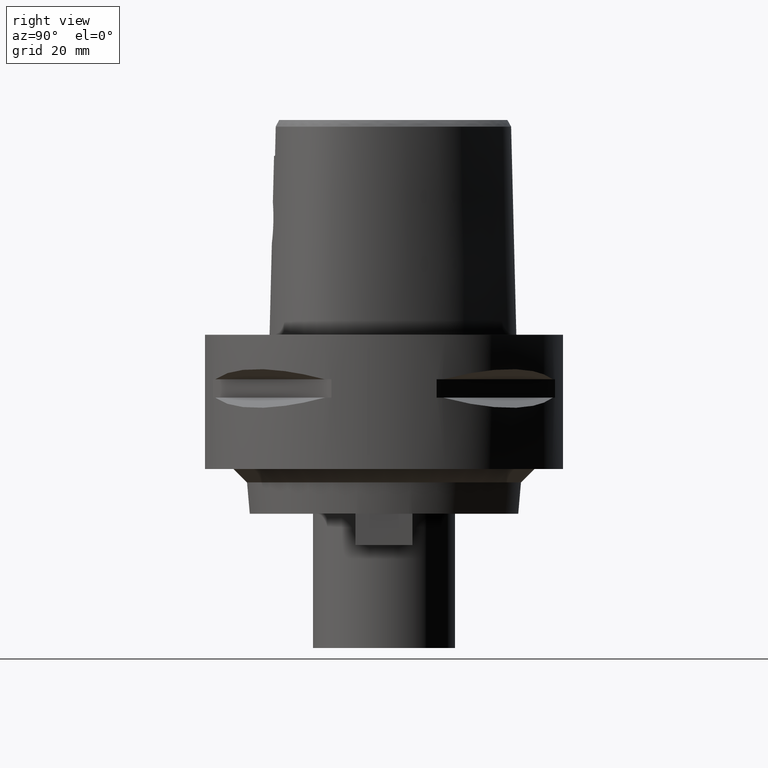
[diagram: clean part render]
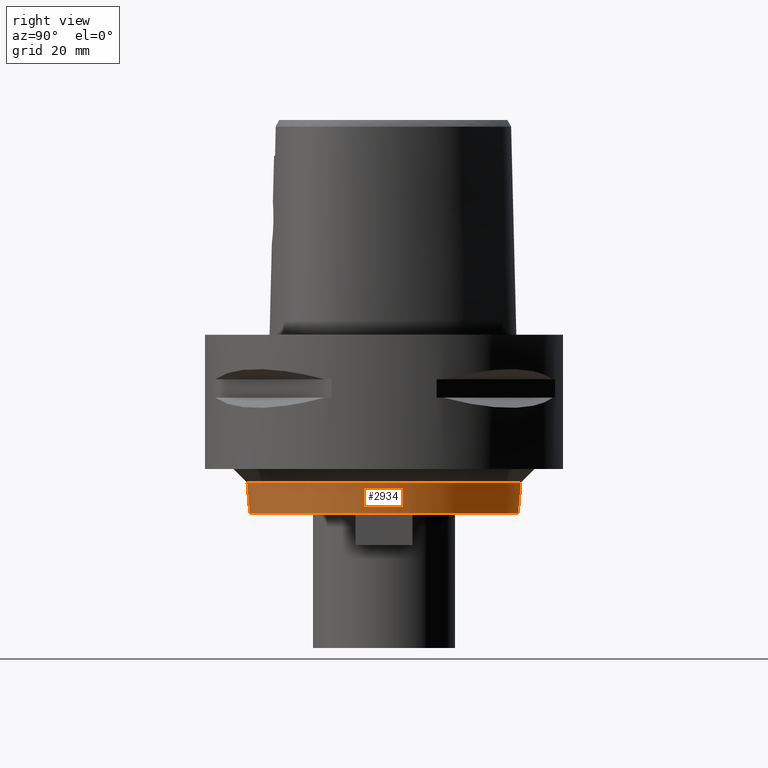
[diagram: same view with one face highlighted and labeled with its STEP entity id]
A machine part, right view. The second image highlights one B-rep face of the part: STEP entity #2934.
In plain terms, the highlighted conical surface has half-angle 5 deg.
Its self-contained STEP definition (entity closure, byte-faithful):
#575=CARTESIAN_POINT('',(0.E0,0.E0,-3.3E1));
#576=DIRECTION('',(0.E0,0.E0,1.E0));
#577=DIRECTION('',(0.E0,-1.E0,0.E0));
#578=AXIS2_PLACEMENT_3D('',#575,#576,#577);
#583=DIRECTION('',(0.E0,-8.715574274757E-2,-9.961946980918E-1));
#584=VECTOR('',#583,7.026738862803E0);
#585=CARTESIAN_POINT('',(0.E0,3.061242064468E1,-3.3E1));
#586=LINE('',#585,#584);
#590=CARTESIAN_POINT('',(0.E0,0.E0,-4.E1));
#591=DIRECTION('',(0.E0,0.E0,1.E0));
#592=DIRECTION('',(9.833333333333E-1,1.818118685773E-1,0.E0));
#593=AXIS2_PLACEMENT_3D('',#590,#591,#592);
#648=CARTESIAN_POINT('',(0.E0,0.E0,-4.E1));
#649=DIRECTION('',(0.E0,0.E0,1.E0));
#650=DIRECTION('',(0.E0,-1.E0,0.E0));
#651=AXIS2_PLACEMENT_3D('',#648,#649,#650);
#663=CARTESIAN_POINT('',(0.E0,0.E0,-4.E1));
#664=DIRECTION('',(0.E0,0.E0,1.E0));
#665=DIRECTION('',(9.773419167427E-1,2.116666666667E-1,0.E0));
#666=AXIS2_PLACEMENT_3D('',#663,#664,#665);
#724=DIRECTION('',(0.E0,8.715574274757E-2,-9.961946980918E-1));
#725=VECTOR('',#724,7.026738862803E0);
#726=CARTESIAN_POINT('',(0.E0,-3.061242064468E1,-3.3E1));
#727=LINE('',#726,#725);
#838=CARTESIAN_POINT('',(0.E0,0.E0,-4.E1));
#839=DIRECTION('',(0.E0,0.E0,1.E0));
#840=DIRECTION('',(9.773419167427E-1,-2.116666666667E-1,0.E0));
#841=AXIS2_PLACEMENT_3D('',#838,#839,#840);
#881=CARTESIAN_POINT('',(0.E0,0.E0,-4.E1));
#882=DIRECTION('',(0.E0,0.E0,1.E0));
#883=DIRECTION('',(9.833333333333E-1,-1.818118685773E-1,0.E0));
#884=AXIS2_PLACEMENT_3D('',#881,#882,#883);
#1886=CARTESIAN_POINT('',(0.E0,3.061242064468E1,-3.3E1));
#1887=VERTEX_POINT('',#1886);
#1888=CARTESIAN_POINT('',(0.E0,-3.061242064468E1,-3.3E1));
#1889=VERTEX_POINT('',#1888);
#1890=CARTESIAN_POINT('',(2.95E1,5.454356057318E0,-4.E1));
#1891=CARTESIAN_POINT('',(2.932025750228E1,6.35E0,-4.E1));
#1892=VERTEX_POINT('',#1890);
#1893=VERTEX_POINT('',#1891);
#1894=CARTESIAN_POINT('',(2.95E1,-5.454356057318E0,-4.E1));
#1895=VERTEX_POINT('',#1894);
#1896=CARTESIAN_POINT('',(2.932025750228E1,-6.35E0,-4.E1));
#1897=VERTEX_POINT('',#1896);
#1898=CARTESIAN_POINT('',(0.E0,-3.E1,-4.E1));
#1899=VERTEX_POINT('',#1898);
#1900=CARTESIAN_POINT('',(0.E0,3.E1,-4.E1));
#1901=VERTEX_POINT('',#1900);
#2912=CARTESIAN_POINT('',(0.E0,0.E0,-3.65E1));
#2913=DIRECTION('',(0.E0,0.E0,1.E0));
#2914=DIRECTION('',(0.E0,1.E0,0.E0));
#2915=AXIS2_PLACEMENT_3D('',#2912,#2913,#2914);
#2916=CONICAL_SURFACE('',#2915,3.030621032234E1,5.E0);
#2918=ORIENTED_EDGE('',*,*,#2917,.F.);
#2920=ORIENTED_EDGE('',*,*,#2919,.F.);
#2922=ORIENTED_EDGE('',*,*,#2921,.F.);
#2924=ORIENTED_EDGE('',*,*,#2923,.F.);
#2926=ORIENTED_EDGE('',*,*,#2925,.F.);
#2927=ORIENTED_EDGE('',*,*,#2905,.T.);
#2929=ORIENTED_EDGE('',*,*,#2928,.T.);
#2931=ORIENTED_EDGE('',*,*,#2930,.F.);
#2932=EDGE_LOOP('',(#2918,#2920,#2922,#2924,#2926,#2927,#2929,#2931));
#2933=FACE_OUTER_BOUND('',#2932,.F.);
#579=CIRCLE('',#578,3.061242064468E1);
#594=CIRCLE('',#593,3.E1);
#652=CIRCLE('',#651,3.E1);
#667=CIRCLE('',#666,3.E1);
#842=CIRCLE('',#841,3.E1);
#885=CIRCLE('',#884,3.E1);
#2905=EDGE_CURVE('',#1889,#1887,#579,.T.);
#2917=EDGE_CURVE('',#1892,#1893,#594,.T.);
#2919=EDGE_CURVE('',#1895,#1892,#885,.T.);
#2921=EDGE_CURVE('',#1897,#1895,#842,.T.);
#2923=EDGE_CURVE('',#1899,#1897,#652,.T.);
#2925=EDGE_CURVE('',#1889,#1899,#727,.T.);
#2928=EDGE_CURVE('',#1887,#1901,#586,.T.);
#2930=EDGE_CURVE('',#1893,#1901,#667,.T.);
#2934=ADVANCED_FACE('',(#2933),#2916,.T.);